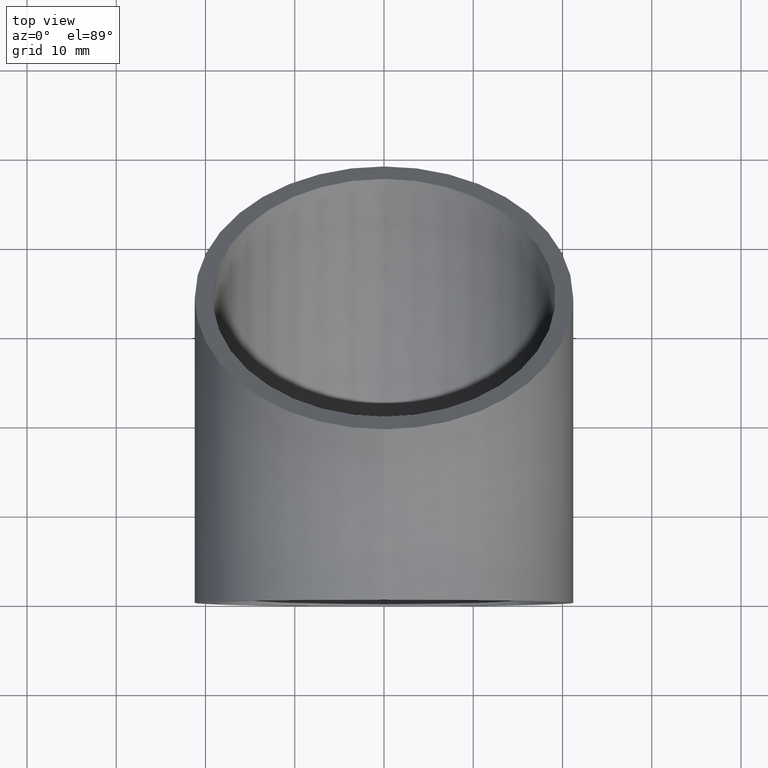
[diagram: clean part render]
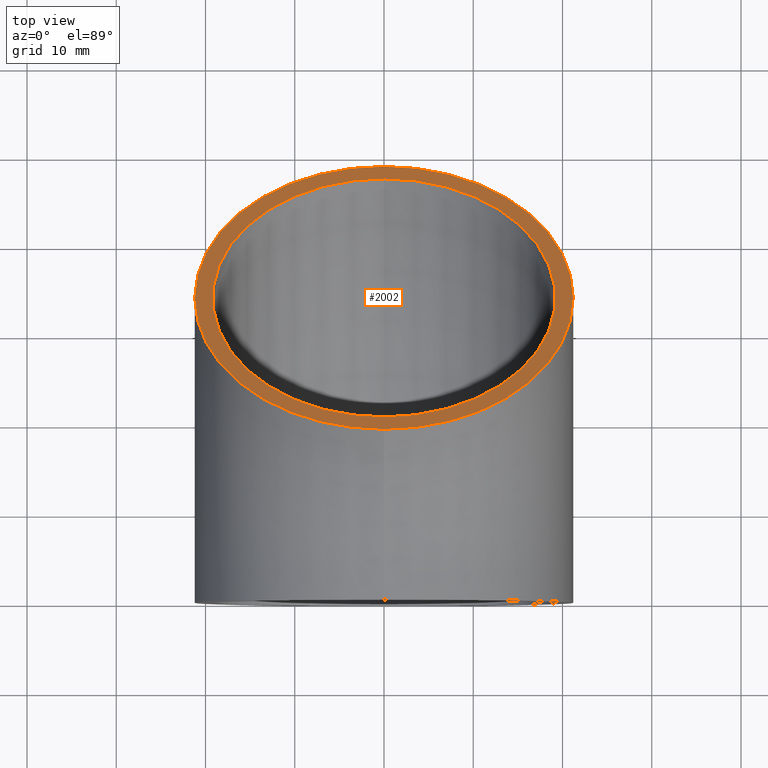
[diagram: same view with one face highlighted and labeled with its STEP entity id]
A machine part, top view. The second image highlights one B-rep face of the part: STEP entity #2002.
In plain terms, the highlighted planar face has unit normal (0, 0.7071, 0.7071).
Its self-contained STEP definition (entity closure, byte-faithful):
#412 = DIRECTION ( 'NONE',  ( 0.0000000000000000000, 0.7071067811865473500, 0.7071067811865476800 ) ) ;
#1084 = FACE_OUTER_BOUND ( 'NONE', #9659, .T. ) ;
#1450 = CIRCLE ( 'NONE', #3000, 19.20000000000000300 ) ;
#1640 = CIRCLE ( 'NONE', #8560, 19.20000000000000300 ) ;
#2002 = ADVANCED_FACE ( 'NONE', ( #6860, #1084 ), #7324, .T. ) ;
#2142 = DIRECTION ( 'NONE',  ( 0.0000000000000000000, 0.7071067811865473500, 0.7071067811865476800 ) ) ;
#2298 = VERTEX_POINT ( 'NONE', #10315 ) ;
#2632 = VERTEX_POINT ( 'NONE', #9993 ) ;
#2947 = AXIS2_PLACEMENT_3D ( 'NONE', #6535, #8106, #3906 ) ;
#3000 = AXIS2_PLACEMENT_3D ( 'NONE', #8994, #2142, #7253 ) ;
#3067 = AXIS2_PLACEMENT_3D ( 'NONE', #8652, #3462, #6846 ) ;
#3373 = AXIS2_PLACEMENT_3D ( 'NONE', #5478, #3587, #10558 ) ;
#3395 = CARTESIAN_POINT ( 'NONE',  ( 2.351321854362918100E-015, 20.36467529817257500, -20.36467529817256100 ) ) ;
#3462 = DIRECTION ( 'NONE',  ( 0.0000000000000000000, 0.7071067811865473500, 0.7071067811865476800 ) ) ;
#3587 = DIRECTION ( 'NONE',  ( 0.0000000000000000000, 0.7071067811865473500, 0.7071067811865476800 ) ) ;
#3865 = EDGE_CURVE ( 'NONE', #2632, #7943, #11032, .T. ) ;
#3906 = DIRECTION ( 'NONE',  ( 0.0000000000000000000, -0.7071067811865477900, 0.7071067811865473500 ) ) ;
#5478 = CARTESIAN_POINT ( 'NONE',  ( 0.0000000000000000000, 33.94112549695429200, -33.94112549695427100 ) ) ;
#5932 = EDGE_CURVE ( 'NONE', #7953, #2298, #1450, .T. ) ;
#5939 = ORIENTED_EDGE ( 'NONE', *, *, #5932, .F. ) ;
#5964 = CARTESIAN_POINT ( 'NONE',  ( 2.596251214192388800E-015, 18.95046173579948600, -18.95046173579946800 ) ) ;
#6129 = ORIENTED_EDGE ( 'NONE', *, *, #3865, .T. ) ;
#6441 = DIRECTION ( 'NONE',  ( 0.0000000000000000000, -0.7071067811865476800, 0.7071067811865473500 ) ) ;
#6535 = CARTESIAN_POINT ( 'NONE',  ( 0.0000000000000000000, 33.94112549695429200, -33.94112549695427100 ) ) ;
#6846 = DIRECTION ( 'NONE',  ( 0.0000000000000000000, -0.7071067811865476800, 0.7071067811865473500 ) ) ;
#6860 = FACE_BOUND ( 'NONE', #10291, .T. ) ;
#7253 = DIRECTION ( 'NONE',  ( 0.0000000000000000000, -0.7071067811865476800, 0.7071067811865473500 ) ) ;
#7324 = PLANE ( 'NONE',  #2947 ) ;
#7792 = EDGE_CURVE ( 'NONE', #7943, #2632, #11074, .T. ) ;
#7808 = EDGE_CURVE ( 'NONE', #2298, #7953, #1640, .T. ) ;
#7943 = VERTEX_POINT ( 'NONE', #5964 ) ;
#7953 = VERTEX_POINT ( 'NONE', #3395 ) ;
#8106 = DIRECTION ( 'NONE',  ( 0.0000000000000000000, 0.7071067811865473500, 0.7071067811865477900 ) ) ;
#8155 = CARTESIAN_POINT ( 'NONE',  ( 0.0000000000000000000, 33.94112549695429200, -33.94112549695427100 ) ) ;
#8560 = AXIS2_PLACEMENT_3D ( 'NONE', #8155, #412, #6441 ) ;
#8652 = CARTESIAN_POINT ( 'NONE',  ( 0.0000000000000000000, 33.94112549695429200, -33.94112549695427100 ) ) ;
#8994 = CARTESIAN_POINT ( 'NONE',  ( 0.0000000000000000000, 33.94112549695429200, -33.94112549695427100 ) ) ;
#9659 = EDGE_LOOP ( 'NONE', ( #10580, #6129 ) ) ;
#9993 = CARTESIAN_POINT ( 'NONE',  ( 0.0000000000000000000, 48.93178925810910600, -48.93178925810907700 ) ) ;
#10291 = EDGE_LOOP ( 'NONE', ( #5939, #11045 ) ) ;
#10315 = CARTESIAN_POINT ( 'NONE',  ( 0.0000000000000000000, 47.51757569573600600, -47.51757569573599200 ) ) ;
#10558 = DIRECTION ( 'NONE',  ( 0.0000000000000000000, -0.7071067811865476800, 0.7071067811865473500 ) ) ;
#10580 = ORIENTED_EDGE ( 'NONE', *, *, #7792, .T. ) ;
#11032 = CIRCLE ( 'NONE', #3067, 21.19999999999999900 ) ;
#11045 = ORIENTED_EDGE ( 'NONE', *, *, #7808, .F. ) ;
#11074 = CIRCLE ( 'NONE', #3373, 21.19999999999999900 ) ;